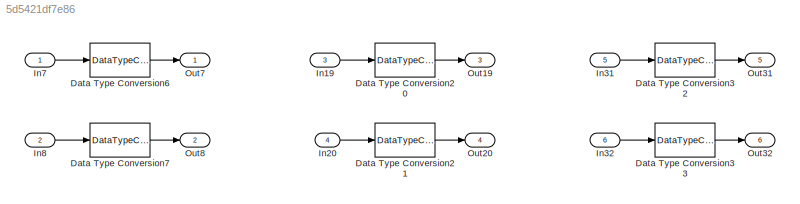
MODEL slx_5d5421df7e86
KIND model
CONFIG AbsTol = auto
CONFIG FixedStep = auto
CONFIG MaxStep = auto
CONFIG MinStep = auto
CONFIG RelTol = 1e-3
CONFIG SampleTimeConstraint = Unconstrained
CONFIG Solver = VariableStepDiscrete
CONFIG SolverMode = Auto
CONFIG SolverName = VariableStepDiscrete
CONFIG StartTime = 0.0
CONFIG StopTime = 10.0
BLOCK [DataTypeConversion] Data Type Conversion20
  OutDataTypeStr = int32
  RndMeth = Floor
  SaturateOnIntegerOverflow = off
BLOCK [DataTypeConversion] Data Type Conversion21
  OutDataTypeStr = uint32
  RndMeth = Floor
  SaturateOnIntegerOverflow = off
BLOCK [DataTypeConversion] Data Type Conversion32
  OutDataTypeStr = int32
  RndMeth = Floor
  SaturateOnIntegerOverflow = off
BLOCK [DataTypeConversion] Data Type Conversion33
  OutDataTypeStr = uint32
  RndMeth = Floor
  SaturateOnIntegerOverflow = off
BLOCK [DataTypeConversion] Data Type Conversion6
  OutDataTypeStr = int32
  RndMeth = Floor
  SaturateOnIntegerOverflow = off
BLOCK [DataTypeConversion] Data Type Conversion7
  OutDataTypeStr = uint32
  RndMeth = Floor
  SaturateOnIntegerOverflow = off
BLOCK [Inport] In19
  IconDisplay = Port number
  OutDataTypeStr = single
  Port = 3
  PortDimensions = 1
BLOCK [Inport] In20
  IconDisplay = Port number
  OutDataTypeStr = single
  Port = 4
  PortDimensions = 1
BLOCK [Inport] In31
  IconDisplay = Port number
  OutDataTypeStr = int8
  Port = 5
  PortDimensions = 1
BLOCK [Inport] In32
  IconDisplay = Port number
  OutDataTypeStr = int8
  Port = 6
  PortDimensions = 1
BLOCK [Inport] In7
  IconDisplay = Port number
  OutDataTypeStr = double
  PortDimensions = 1
BLOCK [Inport] In8
  IconDisplay = Port number
  OutDataTypeStr = double
  Port = 2
  PortDimensions = 1
BLOCK [Outport] Out19
  IconDisplay = Port number
  Port = 3
BLOCK [Outport] Out20
  IconDisplay = Port number
  Port = 4
BLOCK [Outport] Out31
  IconDisplay = Port number
  Port = 5
BLOCK [Outport] Out32
  IconDisplay = Port number
  Port = 6
BLOCK [Outport] Out7
  IconDisplay = Port number
BLOCK [Outport] Out8
  IconDisplay = Port number
  Port = 2
LINE Data Type Conversion20:1 -> Out19:1
LINE Data Type Conversion21:1 -> Out20:1
LINE Data Type Conversion32:1 -> Out31:1
LINE Data Type Conversion33:1 -> Out32:1
LINE Data Type Conversion6:1 -> Out7:1
LINE Data Type Conversion7:1 -> Out8:1
LINE In19:1 -> Data Type Conversion20:1
LINE In20:1 -> Data Type Conversion21:1
LINE In31:1 -> Data Type Conversion32:1
LINE In32:1 -> Data Type Conversion33:1
LINE In7:1 -> Data Type Conversion6:1
LINE In8:1 -> Data Type Conversion7:1
